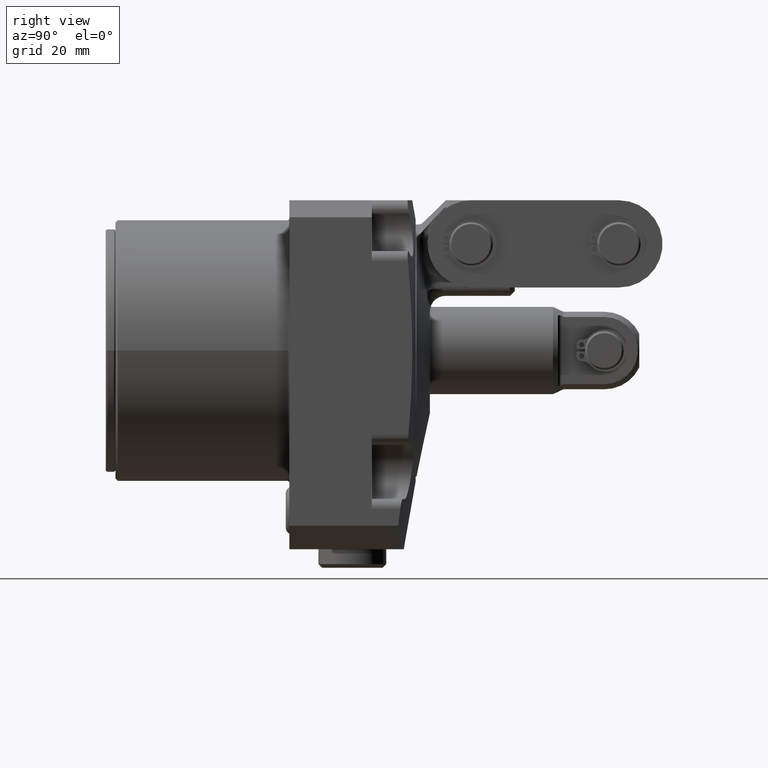
[diagram: clean part render]
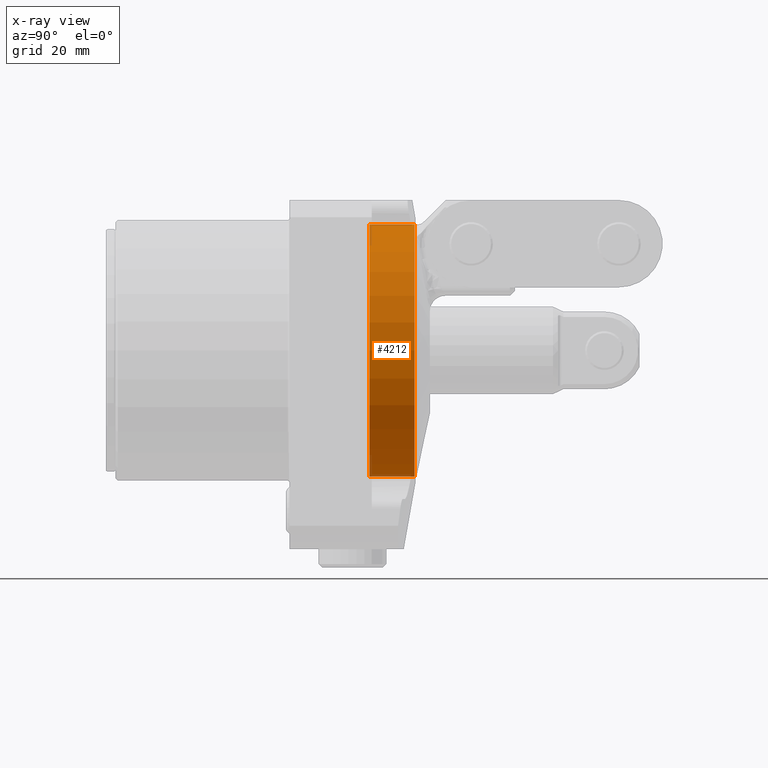
[diagram: x-ray — body ghosted, one internal face saturated and labeled with its STEP entity id]
A machine part, right view, then the same camera in x-ray: the body is ghosted and one INTERNAL B-rep face — a face not visible from any outside direction — is saturated and labeled: STEP entity #4212.
In plain terms, the highlighted cylindrical surface (partial cylindrical patch) has radius 26 mm, axis along (0, -1, 0).
Its self-contained STEP definition (entity closure, byte-faithful):
#1438=DIRECTION('',(-1.992259648638E-12,1.E0,0.E0));
#1439=VECTOR('',#1438,9.31E0);
#1440=CARTESIAN_POINT('',(0.E0,1.65E1,-2.6E1));
#1441=LINE('',#1440,#1439);
#1453=DIRECTION('',(1.992164460695E-12,1.E0,0.E0));
#1454=VECTOR('',#1453,9.31E0);
#1455=CARTESIAN_POINT('',(0.E0,1.65E1,2.6E1));
#1456=LINE('',#1455,#1454);
#1460=CARTESIAN_POINT('',(0.E0,2.581E1,0.E0));
#1461=DIRECTION('',(0.E0,-1.E0,0.E0));
#1462=DIRECTION('',(0.E0,0.E0,-1.E0));
#1463=AXIS2_PLACEMENT_3D('',#1460,#1461,#1462);
#1468=CARTESIAN_POINT('',(0.E0,1.65E1,0.E0));
#1469=DIRECTION('',(0.E0,-1.E0,0.E0));
#1470=DIRECTION('',(0.E0,0.E0,-1.E0));
#1471=AXIS2_PLACEMENT_3D('',#1468,#1469,#1470);
#3073=CARTESIAN_POINT('',(0.E0,1.65E1,-2.6E1));
#3074=CARTESIAN_POINT('',(0.E0,1.65E1,2.6E1));
#3075=VERTEX_POINT('',#3073);
#3076=VERTEX_POINT('',#3074);
#3081=CARTESIAN_POINT('',(0.E0,2.581E1,-2.6E1));
#3082=CARTESIAN_POINT('',(0.E0,2.581E1,2.6E1));
#3083=VERTEX_POINT('',#3081);
#3084=VERTEX_POINT('',#3082);
#4200=CARTESIAN_POINT('',(0.E0,2.6538E1,0.E0));
#4201=DIRECTION('',(0.E0,-1.E0,0.E0));
#4202=DIRECTION('',(0.E0,0.E0,1.E0));
#4203=AXIS2_PLACEMENT_3D('',#4200,#4201,#4202);
#4204=CYLINDRICAL_SURFACE('',#4203,2.6E1);
#4205=ORIENTED_EDGE('',*,*,#4165,.T.);
#4206=ORIENTED_EDGE('',*,*,#4195,.F.);
#4208=ORIENTED_EDGE('',*,*,#4207,.F.);
#4209=ORIENTED_EDGE('',*,*,#4191,.T.);
#4210=EDGE_LOOP('',(#4205,#4206,#4208,#4209));
#4211=FACE_OUTER_BOUND('',#4210,.F.);
#4212=ADVANCED_FACE('',(#4211),#4204,.F.);
#1464=CIRCLE('',#1463,2.6E1);
#1472=CIRCLE('',#1471,2.6E1);
#4165=EDGE_CURVE('',#3083,#3084,#1464,.T.);
#4191=EDGE_CURVE('',#3075,#3083,#1441,.T.);
#4195=EDGE_CURVE('',#3076,#3084,#1456,.T.);
#4207=EDGE_CURVE('',#3075,#3076,#1472,.T.);